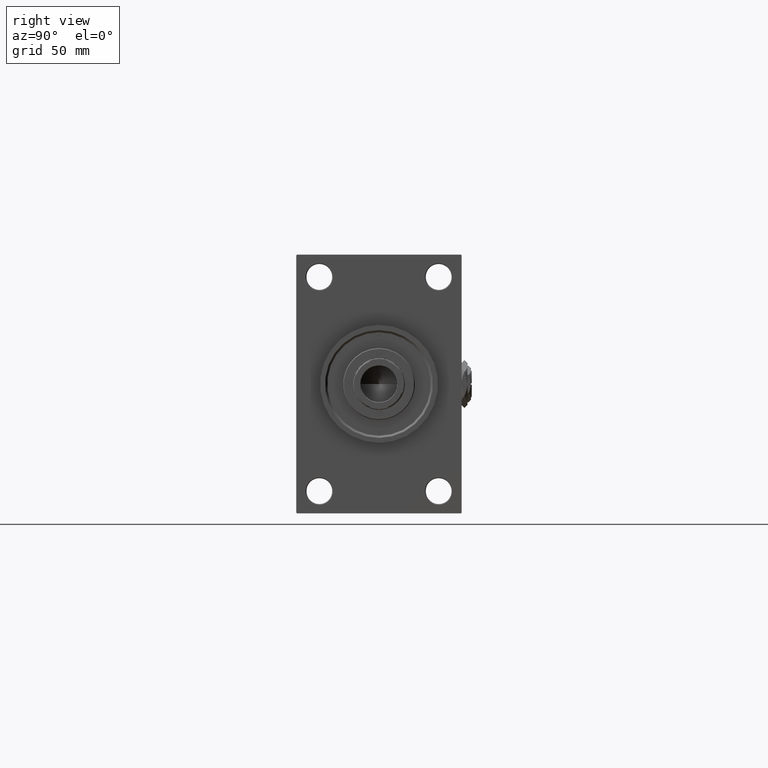
[diagram: clean part render]
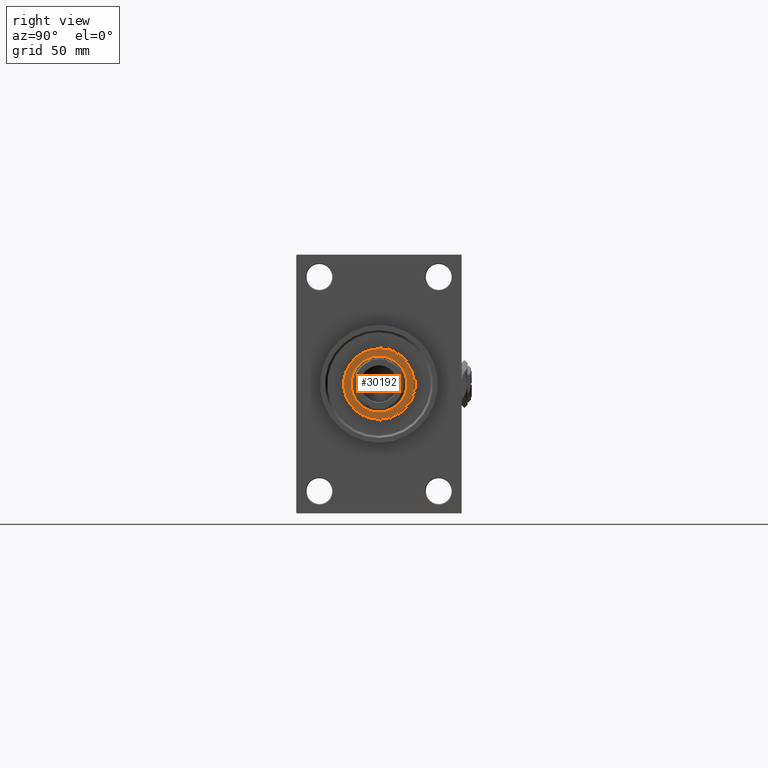
[diagram: same view with one face highlighted and labeled with its STEP entity id]
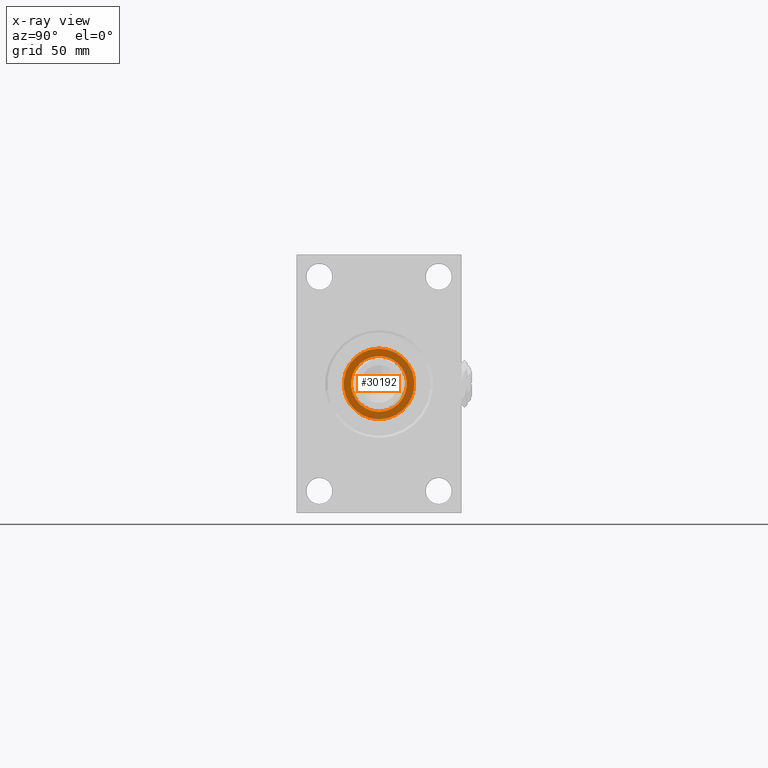
[diagram: x-ray of the same camera — body ghosted, the highlighted face saturated]
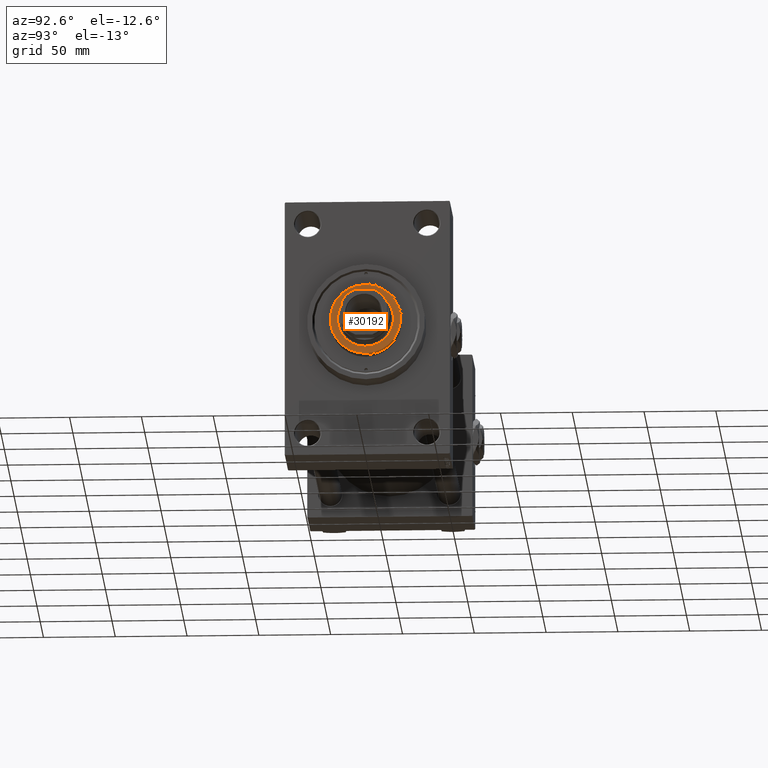
[diagram: same view with one face highlighted and labeled with its STEP entity id]
A machine part, right view. The second image highlights one B-rep face of the part: STEP entity #30192.
The next image is the same camera in x-ray: the body ghosted, the highlighted face saturated — about 0% of this face is hidden behind the body in this view.
A second angle (auxiliary view) of the same face is appended — the face is thin or edge-on in the first view.
In plain terms, the highlighted planar face has unit normal (1, -0, -0).
Its self-contained STEP definition (entity closure, byte-faithful):
#1982 = ORIENTED_EDGE ( 'NONE', *, *, #27956, .T. ) ;
#4012 = AXIS2_PLACEMENT_3D ( 'NONE', #9086, #20955, #12378 ) ;
#5463 = DIRECTION ( 'NONE',  ( 0.000000000000000000, 0.000000000000000000, 1.000000000000000000 ) ) ;
#6341 = EDGE_LOOP ( 'NONE', ( #7555, #9859 ) ) ;
#7555 = ORIENTED_EDGE ( 'NONE', *, *, #38564, .F. ) ;
#9086 = CARTESIAN_POINT ( 'NONE',  ( 0.000000000000000000, 0.000000000000000000, 52.25999999999999801 ) ) ;
#9401 = CARTESIAN_POINT ( 'NONE',  ( 19.50000000000000000, 0.000000000000000000, 52.25999999999999801 ) ) ;
#9859 = ORIENTED_EDGE ( 'NONE', *, *, #19172, .F. ) ;
#10180 = CARTESIAN_POINT ( 'NONE',  ( 0.000000000000000000, 0.000000000000000000, 52.25999999999999801 ) ) ;
#11052 = CARTESIAN_POINT ( 'NONE',  ( 0.000000000000000000, 0.000000000000000000, 52.25999999999999801 ) ) ;
#11947 = DIRECTION ( 'NONE',  ( 0.000000000000000000, 0.000000000000000000, 1.000000000000000000 ) ) ;
#12101 = VERTEX_POINT ( 'NONE', #20198 ) ;
#12378 = DIRECTION ( 'NONE',  ( 1.000000000000000000, 0.000000000000000000, 0.000000000000000000 ) ) ;
#13094 = VERTEX_POINT ( 'NONE', #34340 ) ;
#18777 = AXIS2_PLACEMENT_3D ( 'NONE', #10180, #21556, #38658 ) ;
#19172 = EDGE_CURVE ( 'NONE', #12101, #47759, #47846, .T. ) ;
#19605 = EDGE_CURVE ( 'NONE', #49379, #13094, #49472, .T. ) ;
#20198 = CARTESIAN_POINT ( 'NONE',  ( -19.50000000000000000, 2.388061258337338939E-15, 52.25999999999999801 ) ) ;
#20955 = DIRECTION ( 'NONE',  ( 0.000000000000000000, 0.000000000000000000, 1.000000000000000000 ) ) ;
#21556 = DIRECTION ( 'NONE',  ( 0.000000000000000000, 0.000000000000000000, 1.000000000000000000 ) ) ;
#22279 = CIRCLE ( 'NONE', #33619, 24.49999999999998224 ) ;
#22829 = FACE_BOUND ( 'NONE', #6341, .T. ) ;
#26482 = DIRECTION ( 'NONE',  ( 0.000000000000000000, 0.000000000000000000, 1.000000000000000000 ) ) ;
#26618 = PLANE ( 'NONE',  #34517 ) ;
#27956 = EDGE_CURVE ( 'NONE', #13094, #49379, #22279, .T. ) ;
#28766 = ORIENTED_EDGE ( 'NONE', *, *, #19605, .T. ) ;
#30192 = ADVANCED_FACE ( 'NONE', ( #22829, #38736 ), #26618, .T. ) ;
#30653 = CIRCLE ( 'NONE', #4012, 19.50000000000000000 ) ;
#30873 = AXIS2_PLACEMENT_3D ( 'NONE', #11052, #26482, #41901 ) ;
#33147 = EDGE_LOOP ( 'NONE', ( #1982, #28766 ) ) ;
#33619 = AXIS2_PLACEMENT_3D ( 'NONE', #40578, #5463, #44130 ) ;
#34340 = CARTESIAN_POINT ( 'NONE',  ( -24.49999999999998224, 0.000000000000000000, 52.25999999999999801 ) ) ;
#34517 = AXIS2_PLACEMENT_3D ( 'NONE', #46585, #11947, #42776 ) ;
#38564 = EDGE_CURVE ( 'NONE', #47759, #12101, #30653, .T. ) ;
#38658 = DIRECTION ( 'NONE',  ( 1.000000000000000000, 0.000000000000000000, 0.000000000000000000 ) ) ;
#38736 = FACE_OUTER_BOUND ( 'NONE', #33147, .T. ) ;
#40578 = CARTESIAN_POINT ( 'NONE',  ( 0.000000000000000000, 0.000000000000000000, 52.25999999999999801 ) ) ;
#41901 = DIRECTION ( 'NONE',  ( 1.000000000000000000, 0.000000000000000000, 0.000000000000000000 ) ) ;
#42776 = DIRECTION ( 'NONE',  ( 1.000000000000000000, 0.000000000000000000, -0.000000000000000000 ) ) ;
#44130 = DIRECTION ( 'NONE',  ( 1.000000000000000000, 0.000000000000000000, 0.000000000000000000 ) ) ;
#46585 = CARTESIAN_POINT ( 'NONE',  ( 0.000000000000000000, 0.000000000000000000, 52.25999999999999801 ) ) ;
#47759 = VERTEX_POINT ( 'NONE', #9401 ) ;
#47846 = CIRCLE ( 'NONE', #18777, 19.50000000000000000 ) ;
#47941 = CARTESIAN_POINT ( 'NONE',  ( 24.49999999999998224, 3.031000827889698072E-15, 52.25999999999999801 ) ) ;
#49379 = VERTEX_POINT ( 'NONE', #47941 ) ;
#49472 = CIRCLE ( 'NONE', #30873, 24.49999999999998224 ) ;